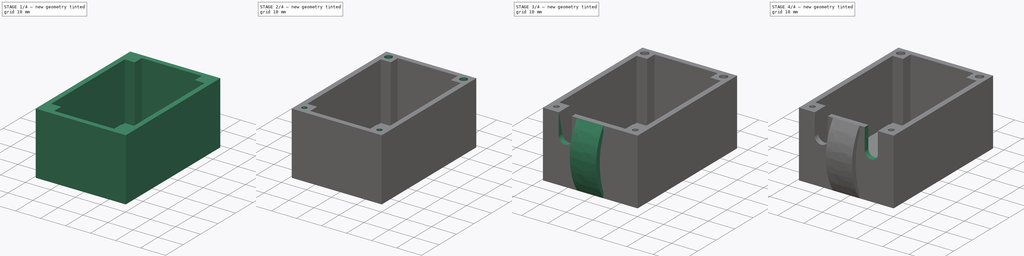
[diagram: build sequence overview — one tinted view per stage of 4, left to right]
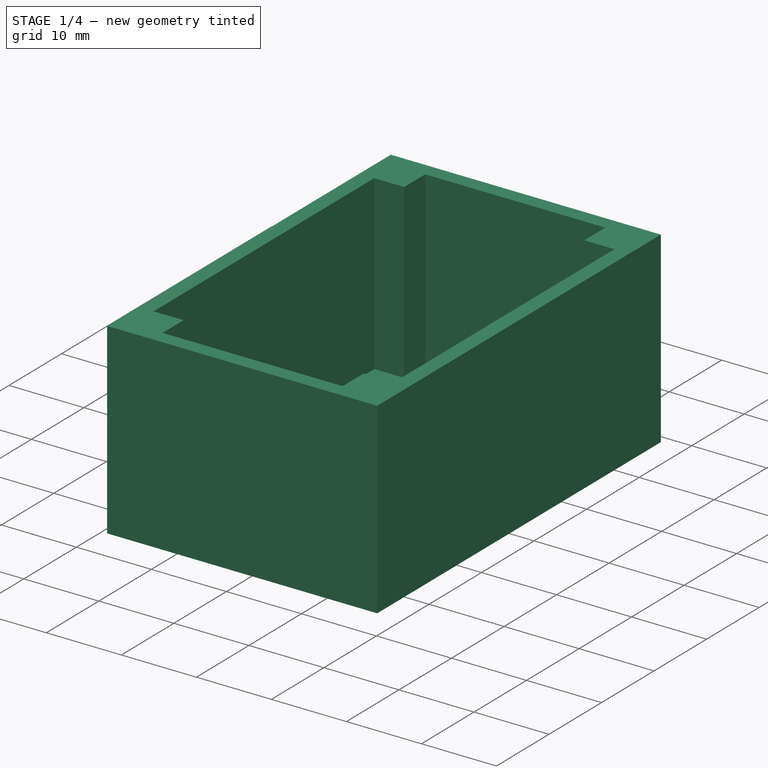
[diagram: stage 1 of 4 — iso view after this stage's code; geometry added in this stage tinted green]
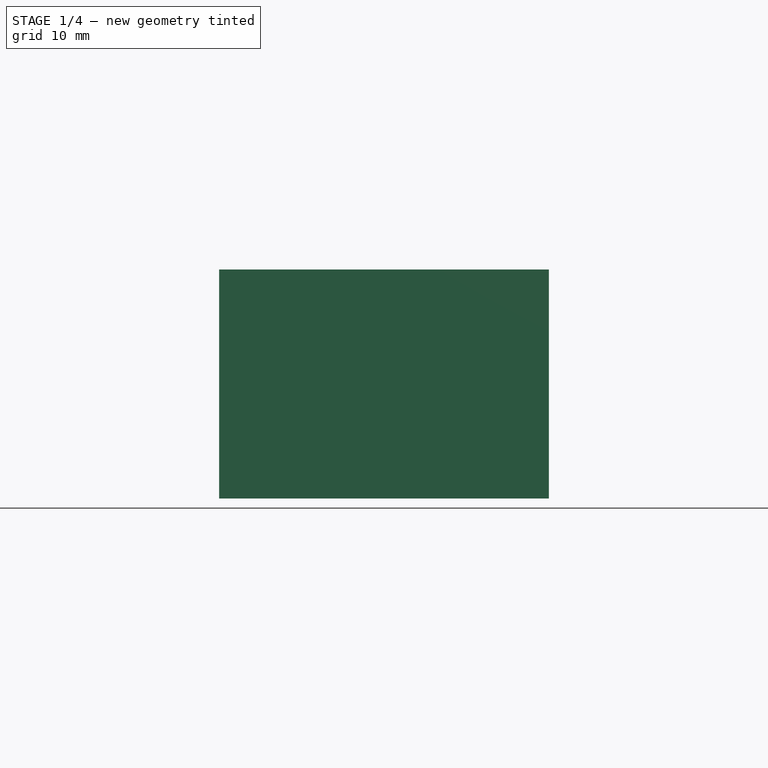
[diagram: stage 1 of 4 — front view after this stage's code; geometry added in this stage tinted green]
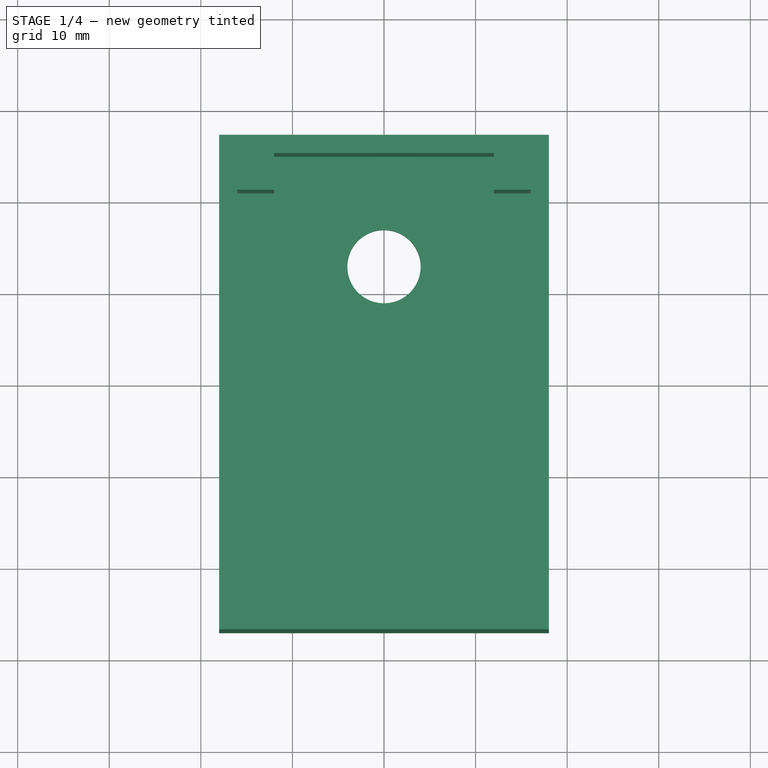
[diagram: stage 1 of 4 — top view after this stage's code; geometry added in this stage tinted green]
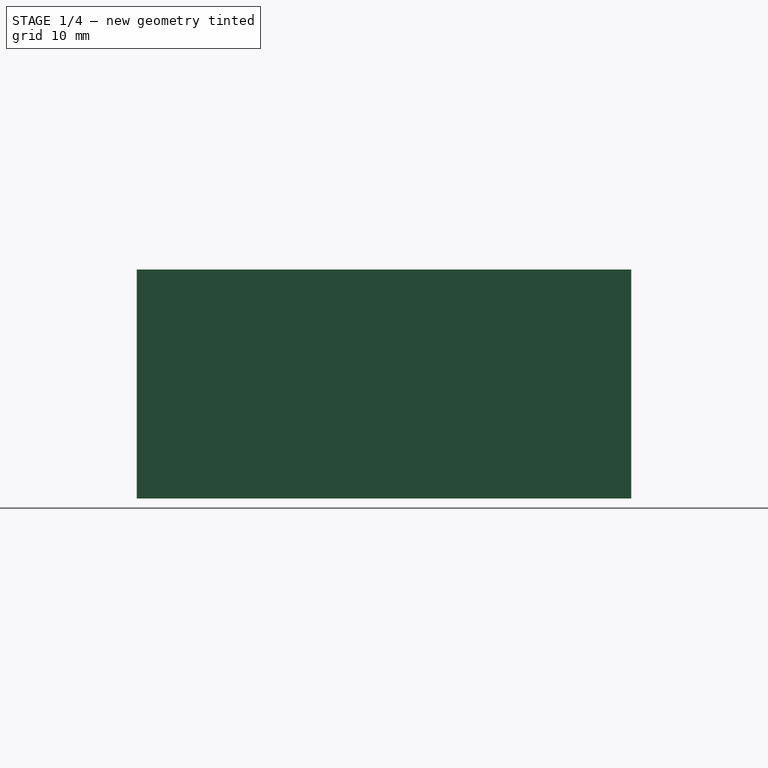
[diagram: stage 1 of 4 — right view after this stage's code; geometry added in this stage tinted green]
FCSTD DOCUMENT  (FreeCAD 1.0RUnknown)
Label: push-pull-switch
License: All rights reserved
LicenseURL: https://en.wikipedia.org/wiki/All_rights_reserved
objects: Sketcher::SketchObject×6, PartDesign::Pad×4, PartDesign::Hole×2, PartDesign::Body×2, PartDesign::Mirrored×2, App::VarSet×1, PartDesign::Pocket×1
note: 39 computed .brp shape members not serialized (recipe doc carries the construction recipe); baked Part::Feature solids carry a one-line shape summary decoded from their .brp

FEATURE [Sketcher::SketchObject] Sketch
  ArcFitTolerance = 1e-06
  AttachmentSupport = -> [XY_Plane]
  FullyConstrained = true
  MakeInternals = false
  MapMode = 5
  expr: Constraints[10] = VarSet.width + 2 * VarSet.thk
  expr: Constraints[11] = VarSet.height + 2 * VarSet.thk
  expr: Constraints[12] = VarSet.sw_dia
  expr: Constraints[14] = VarSet.thk + 12 mm
  expr: Constraints[16] = VarSet.height / 2
  sketch-geometry (7):
    g0: LineSegment StartX=-18 StartY=27 StartZ=0 EndX=-18 EndY=-27 EndZ=0
    g1: LineSegment StartX=-18 StartY=-27 StartZ=0 EndX=18 EndY=-27 EndZ=0
    g2: LineSegment StartX=18 StartY=-27 StartZ=0 EndX=18 EndY=27 EndZ=0
    g3: LineSegment StartX=18 StartY=27 StartZ=0 EndX=-18 EndY=27 EndZ=0
    g4: GeomPoint [constr] X=0 Y=0 Z=0
    g5: Circle CenterX=0 CenterY=13 CenterZ=0 NormalX=0 NormalY=0 NormalZ=1 AngleXU=0 Radius=4
    g6: GeomPoint X=0 Y=-25 Z=0
  constraints (18):
    c: Coincident(g0,g1)
    c: Coincident(g1,g2)
    c: Coincident(g2,g3)
    c: Coincident(g3,g0)
    c: Vertical(g0)
    c: Vertical(g2)
    c: Horizontal(g1)
    c: Horizontal(g3)
    c: Symmetric(g2,g0,g4)
    c: Coincident(g4,g-1)
    c: DistanceX(g3,g3) = 36
    c: Distance(g0,g0) = 54
    c: Diameter(g5) = 8
    c: PointOnObject(g5,g-2)
    c: Distance(g5,g3) = 14
    c: PointOnObject(g6,g-2)
    c: DistanceY(g6,g4) = 25
    c: DistanceY(g6,g5) = 38
FEATURE [App::VarSet] VarSet
  dist_wall_sw = 13
  height = 50
  length = 25
  sw_dia = 8
  thk = 2
  width = 32
FEATURE [PartDesign::Pad] Pad
  Direction = (0,0,1)
  Length = 2
  Length2 = 10
  Profile = -> Sketch
  ReferenceAxis = -> Sketch [N_Axis]
  Refine = true
  Suppressed = false
  Type = 0
  expr: Length = VarSet.thk
FEATURE [Sketcher::SketchObject] Sketch001
  ArcFitTolerance = 1e-06
  AttachmentSupport = -> [XY_Plane]
  FullyConstrained = true
  MakeInternals = false
  MapMode = 5
  expr: Constraints[29] = VarSet.thk
  expr: Constraints[30] = VarSet.width
  expr: Constraints[31] = VarSet.height
  sketch-geometry (29):
    g0: LineSegment StartX=16 StartY=-25 StartZ=0 EndX=16 EndY=25 EndZ=0
    g1: LineSegment StartX=16 StartY=25 StartZ=0 EndX=-16 EndY=25 EndZ=0
    g2: LineSegment StartX=-16 StartY=25 StartZ=0 EndX=-16 EndY=-25 EndZ=0
    g3: LineSegment StartX=-16 StartY=-25 StartZ=0 EndX=16 EndY=-25 EndZ=0
    g4: LineSegment StartX=18 StartY=-27 StartZ=0 EndX=18 EndY=27 EndZ=0
    g5: LineSegment StartX=18 StartY=27 StartZ=0 EndX=-18 EndY=27 EndZ=0
    g6: LineSegment StartX=-18 StartY=27 StartZ=0 EndX=-18 EndY=-27 EndZ=0
    g7: LineSegment StartX=-18 StartY=-27 StartZ=0 EndX=18 EndY=-27 EndZ=0
    g8: LineSegment [constr] StartX=16 StartY=-25 StartZ=0 EndX=18 EndY=-27 EndZ=0
    g9: LineSegment [constr] StartX=16 StartY=25 StartZ=0 EndX=18 EndY=27 EndZ=0
    g10: LineSegment [constr] StartX=-16 StartY=25 StartZ=0 EndX=-18 EndY=27 EndZ=0
    g11: LineSegment [constr] StartX=-16 StartY=-25 StartZ=0 EndX=-18 EndY=-27 EndZ=0
    g12: GeomPoint [constr] X=0 Y=0 Z=0
    g13: LineSegment StartX=-16 StartY=21 StartZ=0 EndX=-12 EndY=21 EndZ=0
    g14: LineSegment StartX=-12 StartY=21 StartZ=0 EndX=-12 EndY=25 EndZ=0
    g15: LineSegment StartX=-12 StartY=25 StartZ=0 EndX=-16 EndY=25 EndZ=0
    g16: LineSegment StartX=-16 StartY=25 StartZ=0 EndX=-16 EndY=21 EndZ=0
    g17: LineSegment StartX=12 StartY=25 StartZ=0 EndX=12 EndY=21 EndZ=0
    g18: LineSegment StartX=12 StartY=21 StartZ=0 EndX=16 EndY=21 EndZ=0
    g19: LineSegment StartX=16 StartY=21 StartZ=0 EndX=16 EndY=25 EndZ=0
    g20: LineSegment StartX=16 StartY=25 StartZ=0 EndX=12 EndY=25 EndZ=0
    g21: LineSegment StartX=-12 StartY=-25 StartZ=0 EndX=-12 EndY=-21 EndZ=0
    g22: LineSegment StartX=-12 StartY=-21 StartZ=0 EndX=-16 EndY=-21 EndZ=0
    g23: LineSegment StartX=-16 StartY=-21 StartZ=0 EndX=-16 EndY=-25 EndZ=0
    g24: LineSegment StartX=-16 StartY=-25 StartZ=0 EndX=-12 EndY=-25 EndZ=0
    g25: LineSegment StartX=12 StartY=-25 StartZ=0 EndX=16 EndY=-25 EndZ=0
    g26: LineSegment StartX=16 StartY=-25 StartZ=0 EndX=16 EndY=-21 EndZ=0
    g27: LineSegment StartX=16 StartY=-21 StartZ=0 EndX=12 EndY=-21 EndZ=0
    g28: LineSegment StartX=12 StartY=-21 StartZ=0 EndX=12 EndY=-25 EndZ=0
  constraints (82):
    c: Coincident(g0,g1)
    c: Coincident(g1,g2)
    c: Coincident(g2,g3)
    c: Coincident(g3,g0)
    c: Vertical(g0)
    c: Vertical(g2)
    c: Horizontal(g1)
    c: Horizontal(g3)
    c: Coincident(g4,g5)
    c: Coincident(g5,g6)
    c: Coincident(g6,g7)
    c: Coincident(g7,g4)
    c: Vertical(g4)
    c: Vertical(g6)
    c: Horizontal(g5)
    c: Horizontal(g7)
    c: Coincident(g8,g0)
    c: Coincident(g8,g4)
    c: Coincident(g9,g1)
    c: Coincident(g9,g5)
    c: Coincident(g10,g2)
    c: Coincident(g10,g6)
    c: Coincident(g11,g3)
    c: Coincident(g11,g7)
    c: Perpendicular(g8,g9)
    c: Perpendicular(g9,g10)
    c: Perpendicular(g10,g11)
    c: Symmetric(g2,g0,g12)
    c: Coincident(g12,g-1)
    c: Distance(g1,g5) = 2
    c: DistanceX(g1,g1) = 32
    c: Distance(g2,g2) = 50
    c: Coincident(g13,g14)
    c: Coincident(g14,g15)
    c: Coincident(g15,g16)
    c: Coincident(g16,g13)
    c: Horizontal(g13)
    c: Horizontal(g15)
    c: Vertical(g14)
    c: Vertical(g16)
    c: PointOnObject(g13,g2)
    c: PointOnObject(g14,g1)
    c: DistanceY(g14,g14) = 4
    c: Equal(g14,g13)
    c: Coincident(g17,g18)
    c: Coincident(g18,g19)
    c: Coincident(g19,g20)
    c: Coincident(g20,g17)
    c: Vertical(g17)
    c: Vertical(g19)
    c: Horizontal(g18)
    c: Horizontal(g20)
    c: PointOnObject(g17,g1)
    c: PointOnObject(g18,g0)
    c: Equal(g17,g18)
    c: Equal(g17,g14)
    c: Coincident(g21,g22)
    c: Coincident(g22,g23)
    c: Coincident(g23,g24)
    c: Coincident(g24,g21)
    c: Vertical(g21)
    c: Vertical(g23)
    c: Horizontal(g22)
    c: Horizontal(g24)
    c: PointOnObject(g21,g3)
    c: PointOnObject(g22,g2)
    c: Coincident(g25,g26)
    c: Coincident(g26,g27)
    c: Coincident(g27,g28)
    c: Coincident(g28,g25)
    c: Horizontal(g25)
    c: Horizontal(g27)
    c: Vertical(g26)
    c: Vertical(g28)
    c: PointOnObject(g25,g3)
    c: PointOnObject(g26,g0)
    c: Equal(g27,g28)
    c: Equal(g22,g21)
    c: Equal(g27,g22)
    c: Equal(g22,g14)
    c: Distance(g2,g0) = 32
    c: Distance(g2,g1) = 50
FEATURE [PartDesign::Pad] Pad001
  BaseFeature = -> Pad
  Direction = (0,0,1)
  Length = 25
  Length2 = 10
  Profile = -> Sketch001
  ReferenceAxis = -> Sketch001 [N_Axis]
  Refine = true
  Suppressed = false
  Type = 0
  expr: Length = VarSet.length
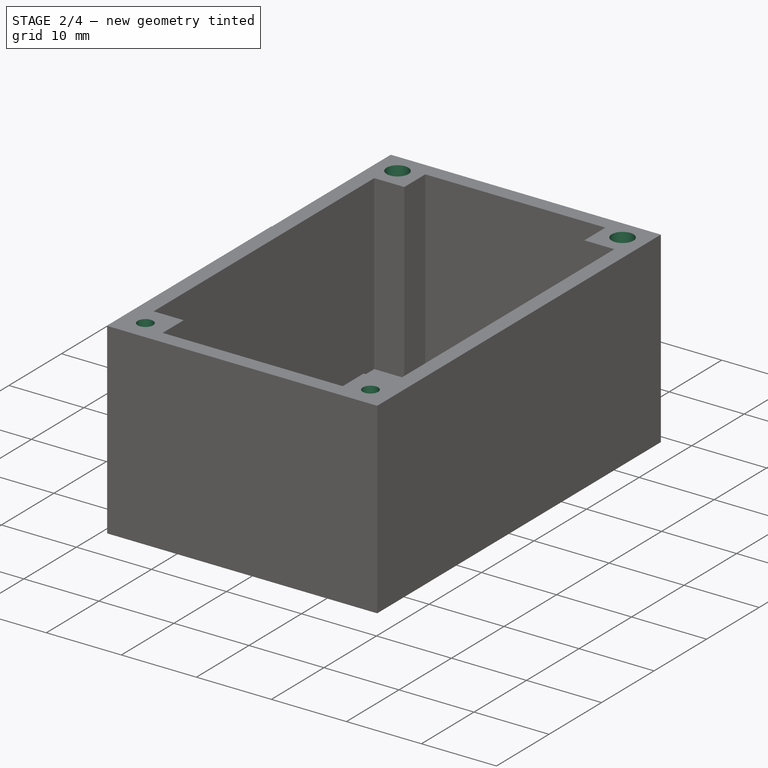
[diagram: stage 2 of 4 — iso view after this stage's code; geometry added in this stage tinted green]
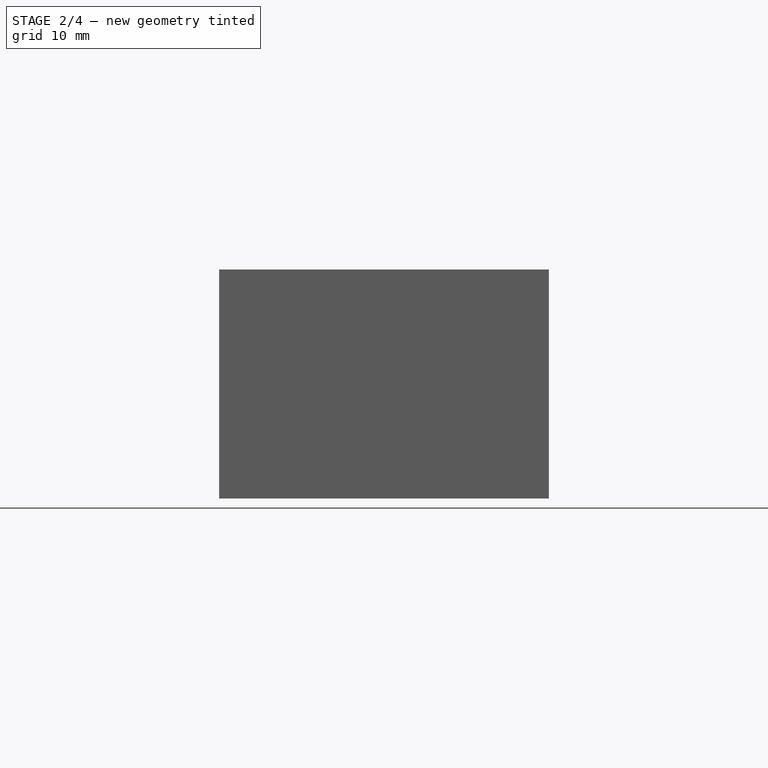
[diagram: stage 2 of 4 — front view after this stage's code; geometry added in this stage tinted green]
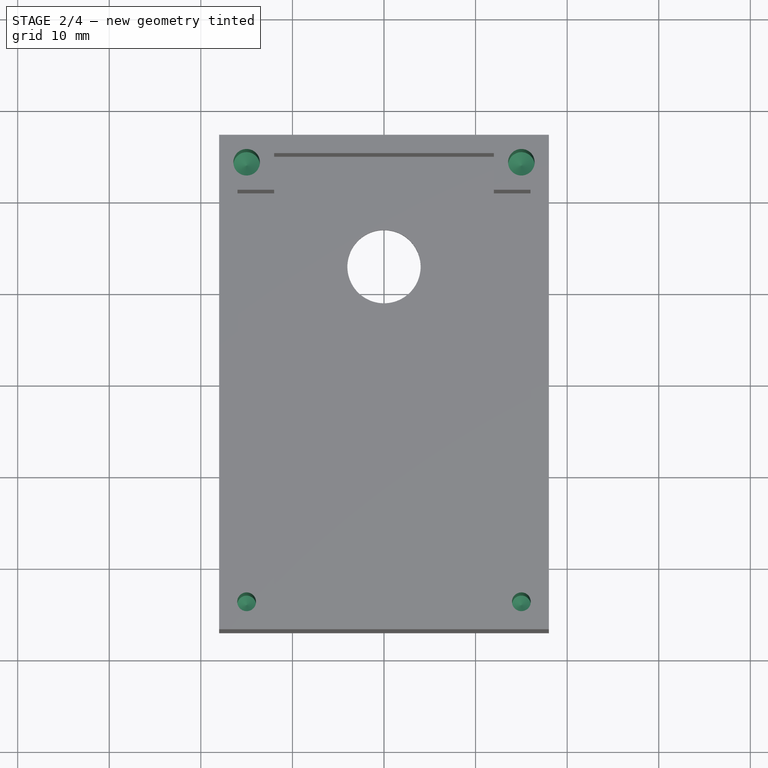
[diagram: stage 2 of 4 — top view after this stage's code; geometry added in this stage tinted green]
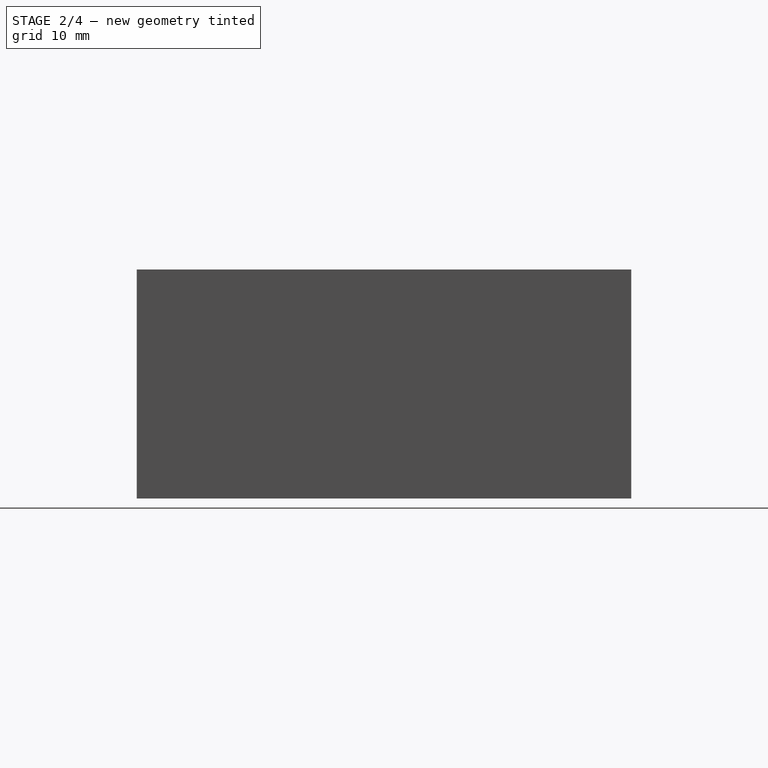
[diagram: stage 2 of 4 — right view after this stage's code; geometry added in this stage tinted green]
FEATURE [Sketcher::SketchObject] Sketch002
  ArcFitTolerance = 1e-06
  AttachmentSupport = -> [Pad001]
  FullyConstrained = true
  MakeInternals = false
  MapMode = 5
  Placement = pos=(0,0,25) rot=(0,0,1;0rad)
  expr: Constraints[6] = 2.57 mm
  expr: Constraints[7] = VarSet.width / 2 - VarSet.thk / 2
  expr: Constraints[8] = VarSet.height / 2 - VarSet.thk / 2
  sketch-geometry (4):
    g0: Circle CenterX=-15 CenterY=24 CenterZ=0 NormalX=0 NormalY=0 NormalZ=1 AngleXU=0 Radius=1.285
    g1: Circle CenterX=15 CenterY=24 CenterZ=0 NormalX=0 NormalY=0 NormalZ=1 AngleXU=0 Radius=1.285
    g2: Circle CenterX=15 CenterY=-24 CenterZ=0 NormalX=0 NormalY=0 NormalZ=1 AngleXU=0 Radius=1.285
    g3: Circle CenterX=-15 CenterY=-24 CenterZ=0 NormalX=0 NormalY=0 NormalZ=1 AngleXU=0 Radius=1.285
  constraints (9):
    c: Equal(g1,g0)
    c: Equal(g0,g2)
    c: Equal(g2,g3)
    c: Symmetric(g1,g2,g-1)
    c: Symmetric(g0,g3,g-1)
    c: Symmetric(g0,g2,g-1)
    c: Diameter(g0) = 2.57
    c: Distance(g0,g-2) = 15
    c: Distance(g0,g-1) = 24
FEATURE [PartDesign::Hole] Hole
  BaseFeature = -> Pad001
  CustomThreadClearance = 0
  Depth = 20
  DepthType = 0
  Diameter = 2.9
  DrillForDepth = false
  DrillPoint = 1
  DrillPointAngle = 118
  HoleCutCountersinkAngle = 90
  HoleCutCustomValues = false
  HoleCutDepth = 0
  HoleCutDiameter = 6.1
  HoleCutType = 0
  ModelThread = false
  Profile = -> Sketch002 [Edge2,Edge1]
  Refine = true
  Suppressed = false
  Tapered = false
  TaperedAngle = 90
  ThreadClass = 0
  ThreadDepth = 20
  ThreadDepthType = 0
  ThreadDirection = 0
  ThreadFit = 0
  ThreadSize = 8
  ThreadType = 1
  Threaded = false
  UseCustomThreadClearance = false
  expr: Depth = VarSet.length - 5 mm
FEATURE [PartDesign::Body] Body001  label="lid"
  AllowCompound = false
  Group = -> [Sketch005,Pad003]
  Origin = -> Origin001
  Placement = pos=(41,0,0) rot=(0,0,1;0rad)
  Tip = -> Pad003
FEATURE [PartDesign::Hole] Hole001
  BaseFeature = -> Hole
  CustomThreadClearance = 0
  Depth = 20
  DepthType = 0
  Diameter = 2.05
  DrillForDepth = false
  DrillPoint = 1
  DrillPointAngle = 118
  HoleCutCountersinkAngle = 90
  HoleCutCustomValues = false
  HoleCutDepth = 0
  HoleCutDiameter = 6.1
  HoleCutType = 0
  ModelThread = false
  Profile = -> Sketch002 [Edge4,Edge3]
  Refine = true
  Suppressed = false
  Tapered = false
  TaperedAngle = 90
  ThreadClass = 0
  ThreadDepth = 20
  ThreadDepthType = 0
  ThreadDirection = 0
  ThreadFit = 0
  ThreadSize = 8
  ThreadType = 1
  Threaded = true
  UseCustomThreadClearance = false
  expr: Depth = VarSet.length - 5 mm
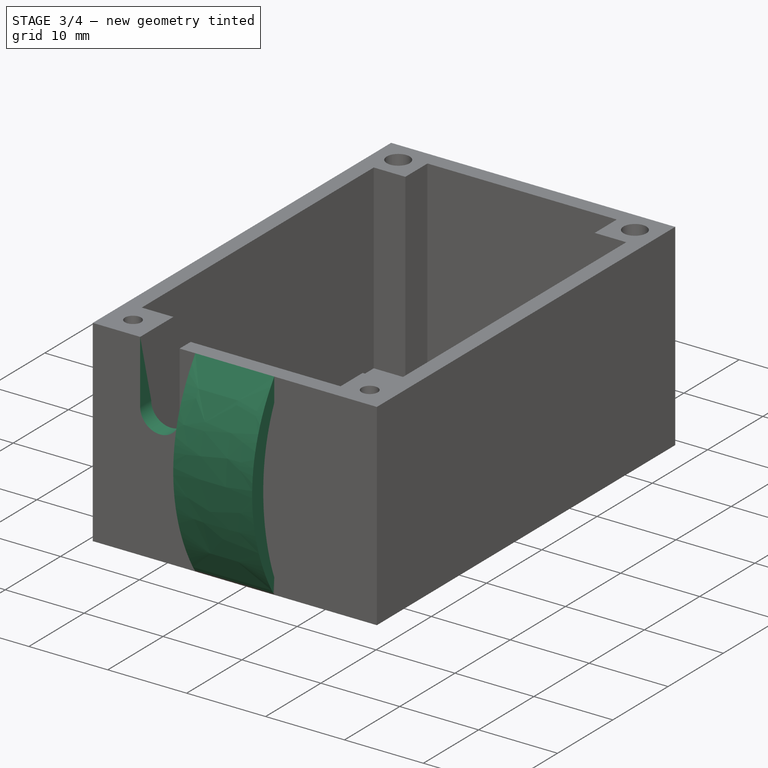
[diagram: stage 3 of 4 — iso view after this stage's code; geometry added in this stage tinted green]
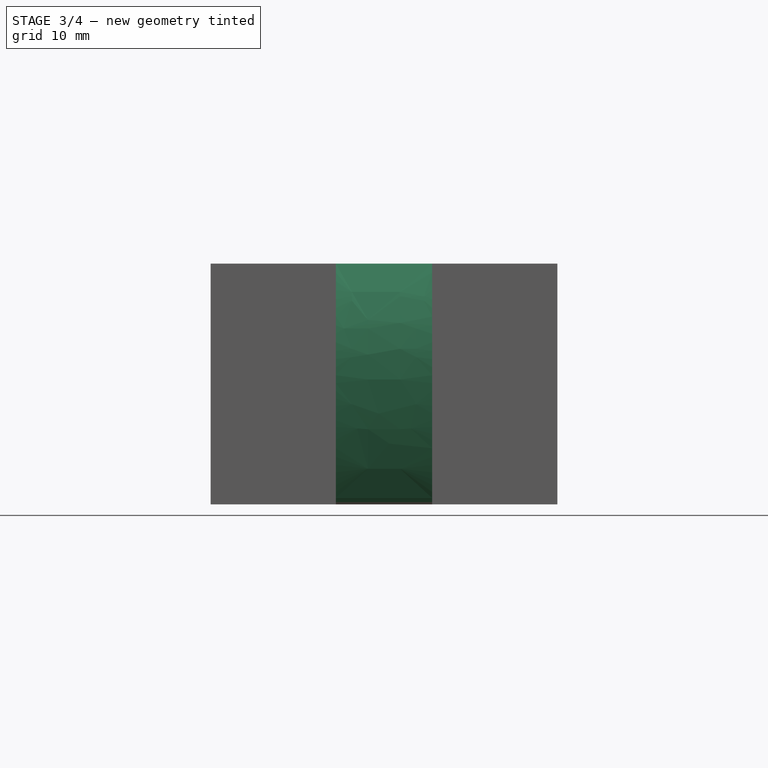
[diagram: stage 3 of 4 — front view after this stage's code; geometry added in this stage tinted green]
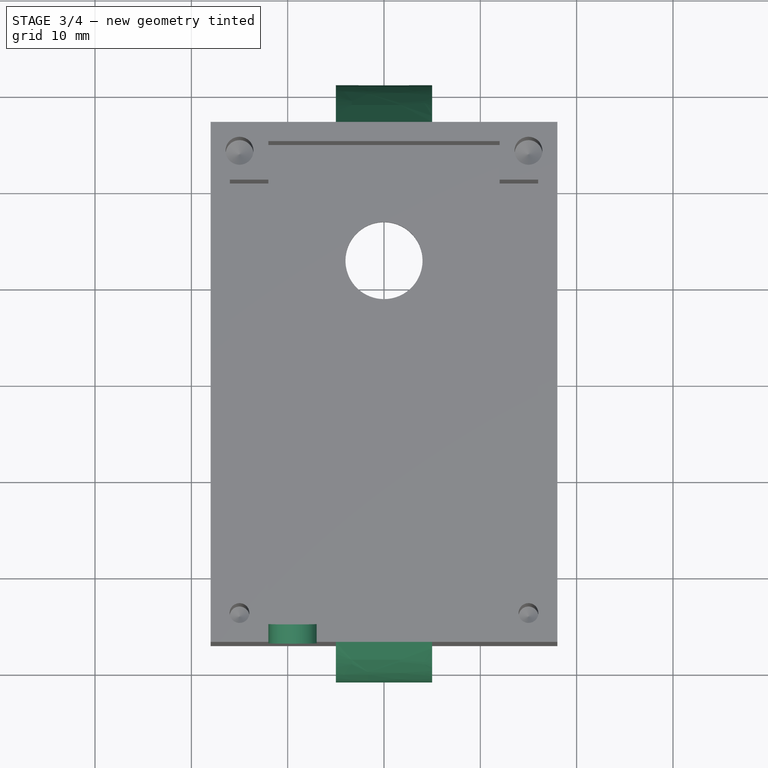
[diagram: stage 3 of 4 — top view after this stage's code; geometry added in this stage tinted green]
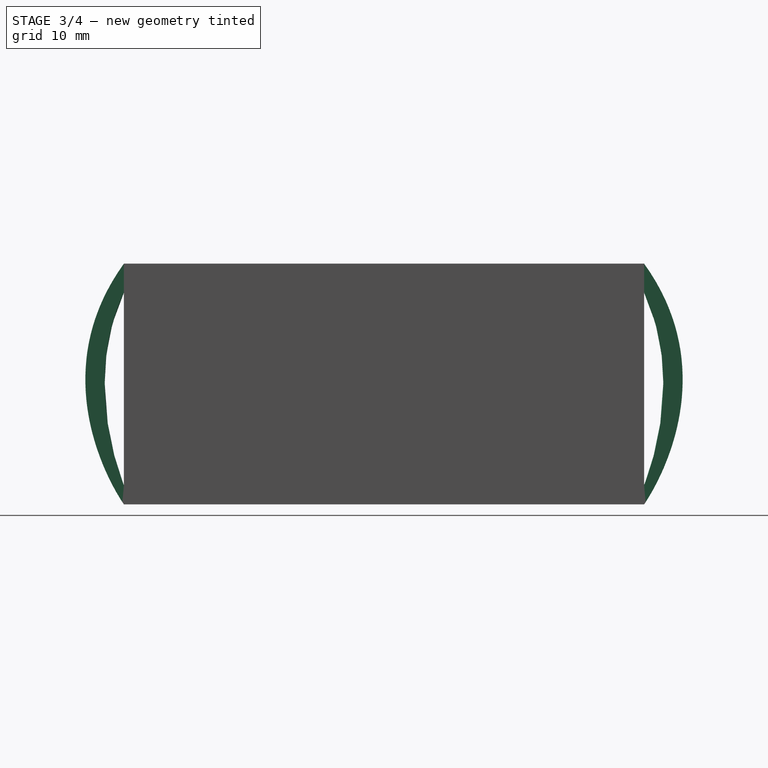
[diagram: stage 3 of 4 — right view after this stage's code; geometry added in this stage tinted green]
FEATURE [PartDesign::Pad] Pad002
  BaseFeature = -> Hole001
  Direction = (1,0,0)
  Length = 10
  Length2 = 10
  Midplane = true
  Profile = -> Sketch003
  ReferenceAxis = -> Sketch003 [N_Axis]
  Refine = true
  Suppressed = false
  Type = 0
FEATURE [PartDesign::Mirrored] Mirrored
  BaseFeature = -> Pad002
  MirrorPlane = -> Sketch003 [V_Axis]
  Originals = -> [Pad002]
  Refine = true
  Suppressed = false
  TransformMode = 0
FEATURE [PartDesign::Pocket] Pocket
  BaseFeature = -> Mirrored
  Direction = (0,1,-2e-16)
  Length = 5
  Length2 = 5
  Profile = -> Sketch004
  ReferenceAxis = -> Sketch004 [N_Axis]
  Refine = true
  Reversed = true
  Suppressed = false
  Type = 1
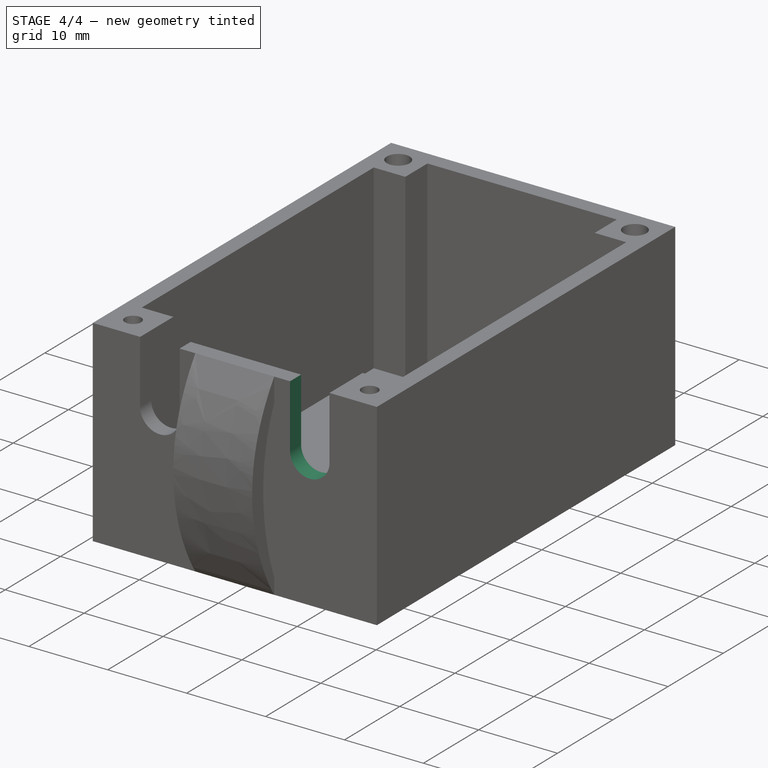
[diagram: stage 4 of 4 — iso view after this stage's code; geometry added in this stage tinted green]
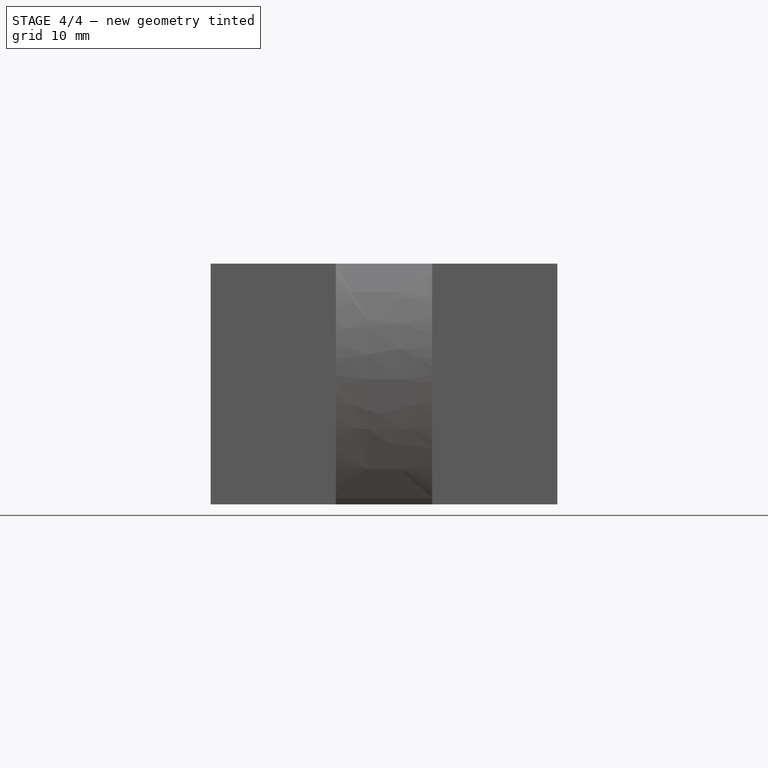
[diagram: stage 4 of 4 — front view after this stage's code; geometry added in this stage tinted green]
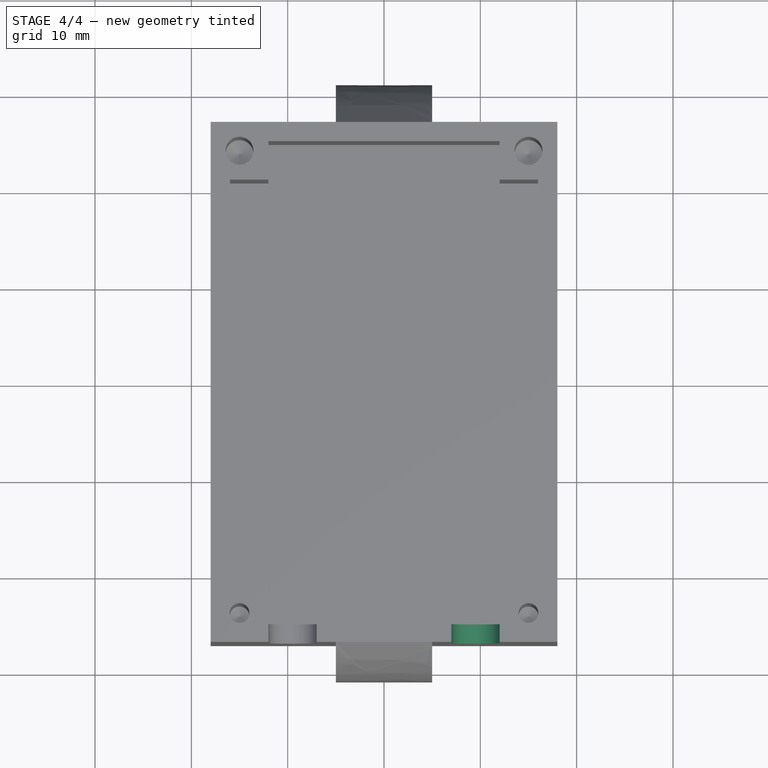
[diagram: stage 4 of 4 — top view after this stage's code; geometry added in this stage tinted green]
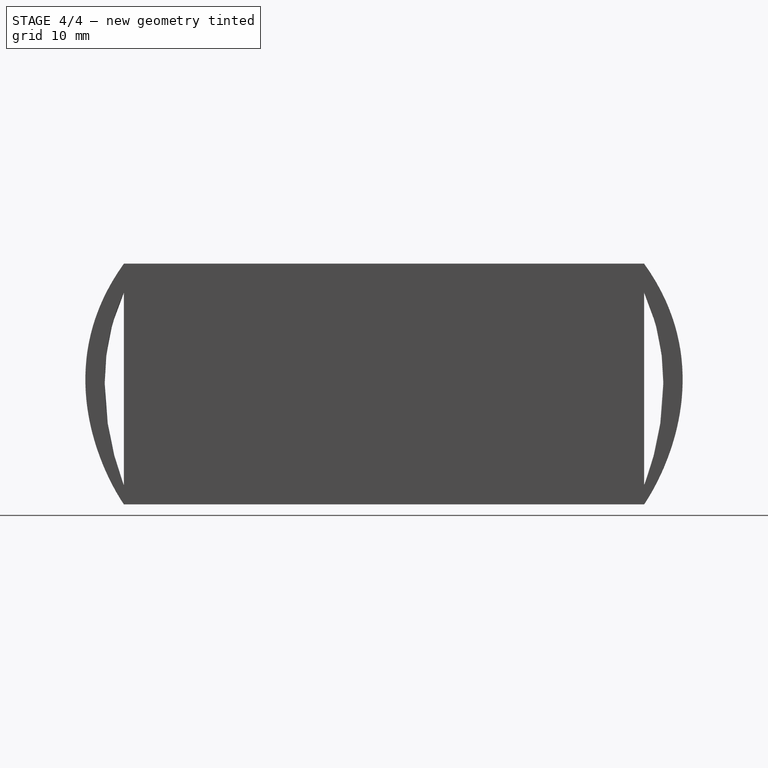
[diagram: stage 4 of 4 — right view after this stage's code; geometry added in this stage tinted green]
FEATURE [Sketcher::SketchObject] Sketch003
  ArcFitTolerance = 1e-06
  AttachmentSupport = -> [YZ_Plane]
  FullyConstrained = true
  MakeInternals = false
  MapMode = 5
  Placement = pos=(0,0,0) rot=(0.57735,0.57735,0.57735;2.0944rad)
  expr: Constraints[25] = VarSet.length
  expr: Constraints[32] = VarSet.height / 2 + VarSet.thk
  expr: Constraints[33] = VarSet.length / 2
  sketch-geometry (20):
    g0: GeomPoint [constr] X=27 Y=25 Z=0
    g1: GeomPoint [constr] X=27 Y=0 Z=0
    g2-g5: Circle [constr] x4 (B-spline internal-alignment scaffolding for g6; pole/knot coordinates omitted)
    g6: BSplineCurve PolesCount=4 KnotsCount=2 Degree=3 IsPeriodic=0
    g7: GeomPoint [constr] X=27 Y=25 Z=0
    g8: GeomPoint [constr] X=27 Y=0 Z=0
    g9-g12: Circle [constr] x4 (B-spline internal-alignment scaffolding for g13; pole/knot coordinates omitted)
    g13: BSplineCurve PolesCount=4 KnotsCount=2 Degree=3 IsPeriodic=0
    g14: GeomPoint [constr] X=27 Y=22 Z=0
    g15: GeomPoint [constr] X=27 Y=2 Z=0
    g16: LineSegment StartX=27 StartY=25 StartZ=0 EndX=27 EndY=22 EndZ=0
    g17: LineSegment StartX=27 StartY=2 StartZ=0 EndX=27 EndY=0 EndZ=0
    g18: GeomPoint X=31 Y=12.5 Z=0
    g19: GeomPoint X=29 Y=12.5 Z=0
  constraints (39):
    c: Weight(g2) = 1
    c: Equal(g2,g3)
    c: Equal(g2,g4)
    c: Equal(g2,g5)
    c: InternalAlignment(g2-g5 -> g6) x4
    c: InternalAlignment(g7,g6)
    c: InternalAlignment(g8,g6)
    c: Coincident(g2,g0)
    c: Coincident(g4,g1)
    c: Coincident(g5,g1)
    c: Weight(g9) = 1
    c: Equal(g9,g10)
    c: Equal(g9,g11)
    c: Equal(g9,g12)
    c: InternalAlignment(g9-g12 -> g13) x4
    c: InternalAlignment(g14,g13)
    c: InternalAlignment(g15,g13)
    c: Horizontal(g3,g10)
    c: DistanceY(g13,g6) = 3
    c: Distance(g6,g-1) = 25
    c: DistanceY(g6,g13) = 2
    c: Vertical(g6,g13)
    c: Vertical(g13,g6)
    c: Vertical(g6,g13)
    c: Coincident(g11,g13)
    c: PointOnObject(g6,g-1)
    c: Distance(g6,g-2) = 27
    c: DistanceY(g-1,g10) = 12.5
    c: Coincident(g16,g6)
    c: Coincident(g16,g13)
    c: Coincident(g17,g11)
    c: Coincident(g17,g6)
    c: PointOnObject(g18,g6)
    c: PointOnObject(g19,g13)
    c: Horizontal(g19,g18)
    c: Horizontal(g18,g10)
    c: Distance(g18,g19) = 2
    c: Distance(g18,g19) = 2
    c: DistanceX(g13,g19) = 2
FEATURE [Sketcher::SketchObject] Sketch004
  ArcFitTolerance = 1e-06
  AttachmentSupport = -> [XZ_Plane]
  FullyConstrained = true
  MakeInternals = false
  MapMode = 5
  Placement = pos=(0,0,0) rot=(1,0,0;1.5708rad)
  expr: Constraints[10] = VarSet.width / 2 - 4 mm
  expr: Constraints[12] = VarSet.length + 1 mm
  sketch-geometry (5):
    g0: ArcOfCircle CenterX=-9.5 CenterY=17 CenterZ=0 NormalX=0 NormalY=0 NormalZ=1 AngleXU=0 Radius=2.5 StartAngle=3.14159 EndAngle=6.28319
    g1: GeomPoint X=-12 Y=17 Z=0
    g2: LineSegment StartX=-12 StartY=17 StartZ=0 EndX=-12 EndY=26 EndZ=0
    g3: LineSegment StartX=-12 StartY=26 StartZ=0 EndX=-7 EndY=26 EndZ=0
    g4: LineSegment StartX=-7 StartY=26 StartZ=0 EndX=-7 EndY=17 EndZ=0
  constraints (13):
    c: Diameter(g0) = 5
    c: Horizontal(g0,g1)
    c: Coincident(g2,g1)
    c: Vertical(g2)
    c: Coincident(g2,g3)
    c: Horizontal(g3)
    c: Coincident(g3,g4)
    c: Horizontal(g4,g0)
    c: Tangent(g0,g4) = 1.5708
    c: Coincident(g0,g2)
    c: Distance(g2,g-2) = 12
    c: DistanceY(g0,g2) = 9
    c: Distance(g2,g-1) = 26
FEATURE [Sketcher::SketchObject] Sketch005
  ArcFitTolerance = 1e-06
  AttachmentSupport = -> [XY_Plane001]
  FullyConstrained = true
  MakeInternals = false
  MapMode = 5
  expr: Constraints[10] = VarSet.height + 2 * VarSet.thk
  expr: Constraints[11] = VarSet.width + 2 * VarSet.thk
  expr: Constraints[19] = VarSet.width / 2 - VarSet.thk / 2
  expr: Constraints[20] = VarSet.height / 2 - VarSet.thk / 2
  sketch-geometry (9):
    g0: LineSegment StartX=-18 StartY=-27 StartZ=0 EndX=18 EndY=-27 EndZ=0
    g1: LineSegment StartX=18 StartY=-27 StartZ=0 EndX=18 EndY=27 EndZ=0
    g2: LineSegment StartX=18 StartY=27 StartZ=0 EndX=-18 EndY=27 EndZ=0
    g3: LineSegment StartX=-18 StartY=27 StartZ=0 EndX=-18 EndY=-27 EndZ=0
    g4: GeomPoint [constr] X=0 Y=0 Z=0
    g5: Circle CenterX=-15 CenterY=24 CenterZ=0 NormalX=0 NormalY=0 NormalZ=1 AngleXU=0 Radius=1.55
    g6: Circle CenterX=15 CenterY=24 CenterZ=0 NormalX=0 NormalY=0 NormalZ=1 AngleXU=0 Radius=1.55
    g7: Circle CenterX=-15 CenterY=-24 CenterZ=0 NormalX=0 NormalY=0 NormalZ=1 AngleXU=0 Radius=1.55
    g8: Circle CenterX=15 CenterY=-24 CenterZ=0 NormalX=0 NormalY=0 NormalZ=1 AngleXU=0 Radius=1.55
  constraints (22):
    c: Coincident(g0,g1)
    c: Coincident(g1,g2)
    c: Coincident(g2,g3)
    c: Coincident(g3,g0)
    c: Horizontal(g0)
    c: Horizontal(g2)
    c: Vertical(g1)
    c: Vertical(g3)
    c: Symmetric(g2,g0,g4)
    c: Coincident(g4,g-1)
    c: DistanceY(g3,g3) = 54
    c: DistanceX(g2,g2) = 36
    c: Equal(g5,g7)
    c: Equal(g7,g8)
    c: Equal(g8,g6)
    c: Symmetric(g5,g8,g4)
    c: Symmetric(g6,g7,g4)
    c: Horizontal(g5,g6)
    c: Vertical(g5,g7)
    c: Distance(g5,g-2) = 15
    c: DistanceY(g-1,g5) = 24
    c: Diameter(g5) = 3.1
FEATURE [PartDesign::Pad] Pad003
  Direction = (0,0,1)
  Length = 2
  Length2 = 10
  Profile = -> Sketch005
  ReferenceAxis = -> Sketch005 [N_Axis]
  Refine = true
  Suppressed = false
  Type = 0
  expr: Length = VarSet.thk
FEATURE [PartDesign::Mirrored] Mirrored001
  BaseFeature = -> Pocket
  MirrorPlane = -> Sketch004 [V_Axis]
  Originals = -> [Pocket]
  Refine = true
  Suppressed = false
  TransformMode = 0
FEATURE [PartDesign::Body] Body
  AllowCompound = false
  Group = -> [Sketch,Pad,Sketch001,Pad001,Sketch002,Hole,Sketch003,Hole001,Pad002,Mirrored,Sketch004,Pocket,Mirrored001]
  Origin = -> Origin
  Tip = -> Mirrored001
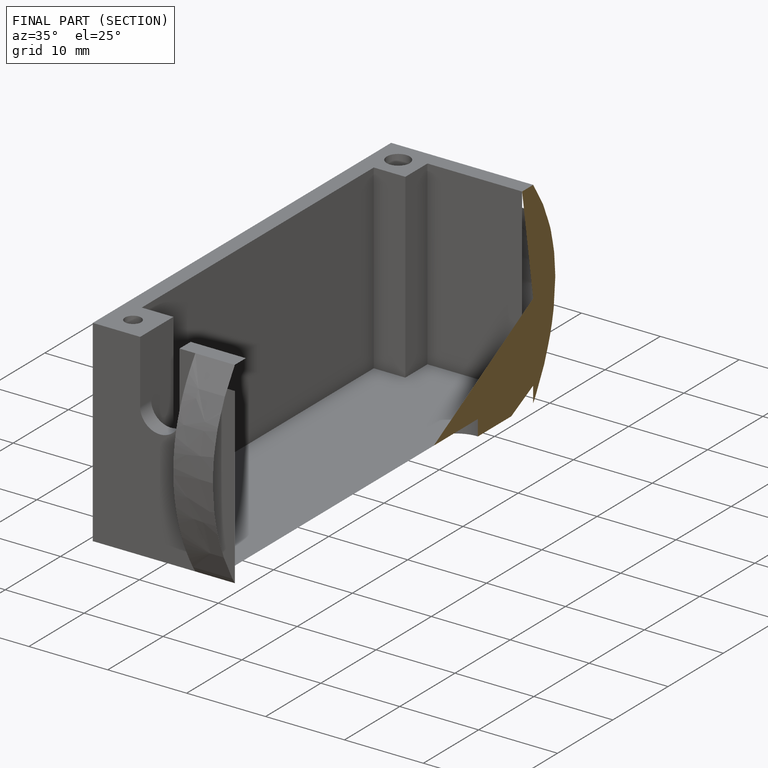
[diagram: finished part — half-section view (interior)]
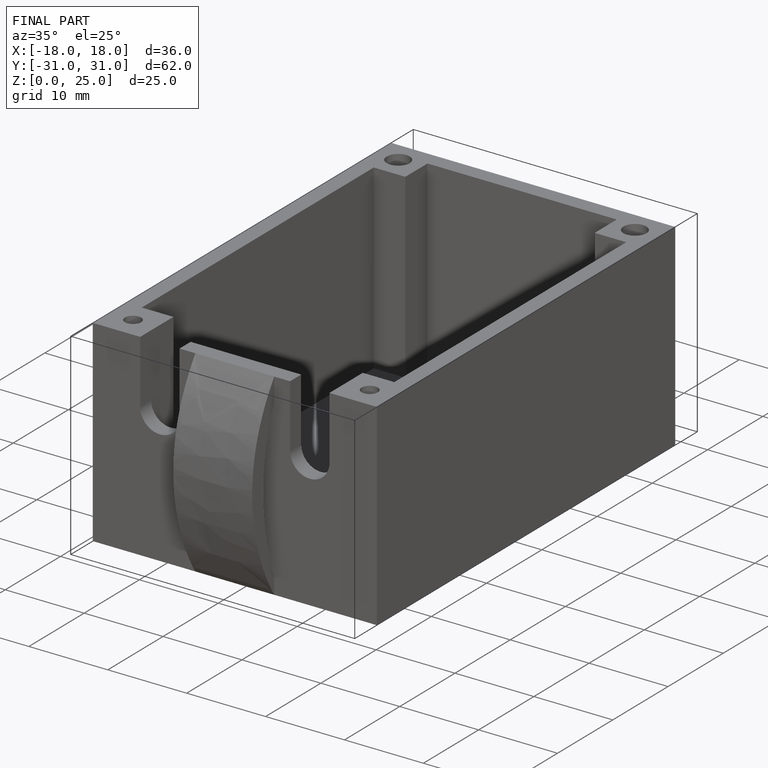
[diagram: finished part — iso view with bounding-box wireframe]
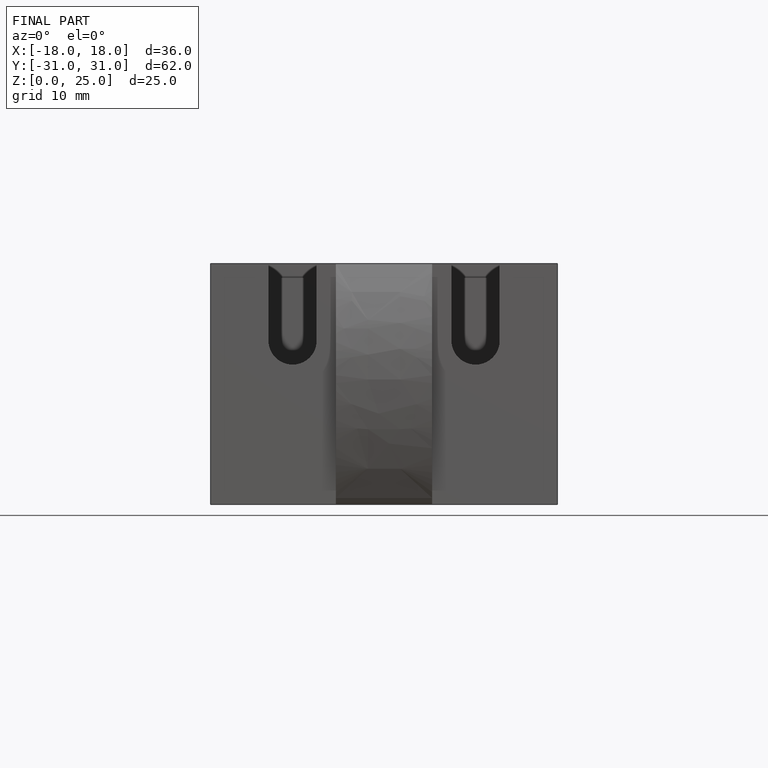
[diagram: finished part — front view with bounding-box wireframe]
